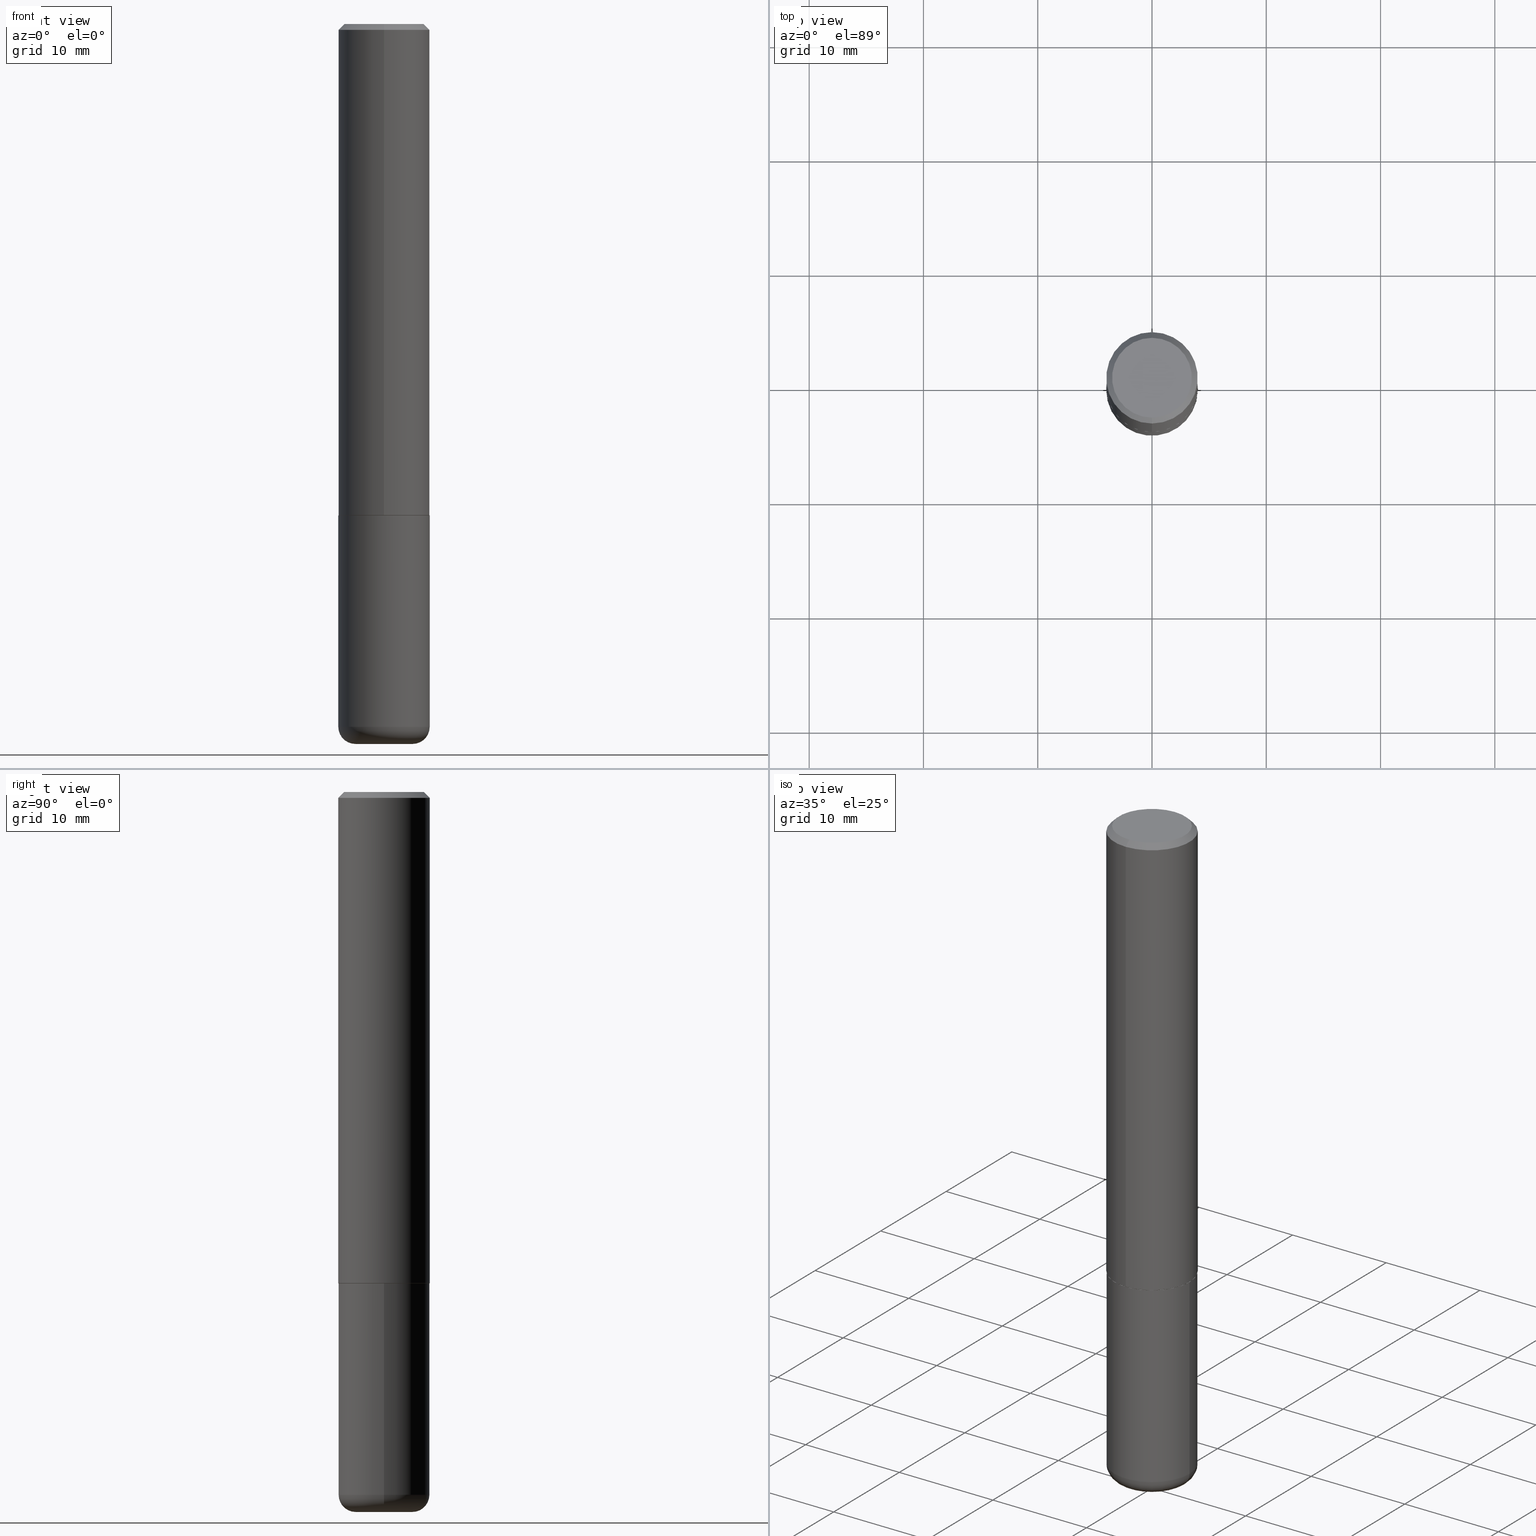
[diagram: canonical four-view strip — front | top / right | iso, engineering-drawing reading convention]
A machine part, canonical four-view strip (front | top / right | iso — engineering-drawing reading convention). The complete STEP part file that produces these views, byte-faithful:
ISO-10303-21;
HEADER;
FILE_DESCRIPTION (( 'STEP AP203' ),
    '1' );
FILE_NAME ('43477.STEP',
    '2024-03-04T05:01:27',
    ( '' ),
    ( '' ),
    'SwSTEP 2.0',
    'SolidWorks 2023',
    '' );
FILE_SCHEMA (( 'CONFIG_CONTROL_DESIGN' ));
ENDSEC;

DATA;
#1 = ORIENTED_EDGE ( 'NONE', *, *, #148, .T. ) ;
#2 = DIRECTION ( 'NONE',  ( 5.024295867787719235E-15, 0.7071067811865017205, 0.7071067811865933139 ) ) ;
#3 = AXIS2_PLACEMENT_3D ( 'NONE', #408, #248, #220 ) ;
#4 = ORIENTED_EDGE ( 'NONE', *, *, #71, .F. ) ;
#5 = CARTESIAN_POINT ( 'NONE',  ( 6.065496279980994755E-29, -8.659921164732655335E-15, -2.480300000000000171 ) ) ;
#6 = CYLINDRICAL_SURFACE ( 'NONE', #265, 0.1575000000000000844 ) ;
#7 = EDGE_LOOP ( 'NONE', ( #115, #165, #49, #374 ) ) ;
#8 = DIRECTION ( 'NONE',  ( -2.446155244437774389E-29, 3.490498320195729137E-15, 1.000000000000000000 ) ) ;
#9 = DIRECTION ( 'NONE',  ( -2.446155244437774389E-29, 3.490498320195729137E-15, 1.000000000000000000 ) ) ;
#10 = ADVANCED_FACE ( 'NONE', ( #18 ), #221, .F. ) ;
#11 = EDGE_LOOP ( 'NONE', ( #109, #85, #47, #243 ) ) ;
#12 = CYLINDRICAL_SURFACE ( 'NONE', #41, 0.1575000000000000011 ) ;
#13 = AXIS2_PLACEMENT_3D ( 'NONE', #369, #396, #296 ) ;
#14 = DIMENSIONAL_EXPONENTS ( 1.000000000000000000, 0.000000000000000000, 0.000000000000000000, 0.000000000000000000, 0.000000000000000000, 0.000000000000000000, 0.000000000000000000 ) ;
#15 = FACE_OUTER_BOUND ( 'NONE', #104, .T. ) ;
#16 = COORDINATED_UNIVERSAL_TIME_OFFSET ( 5, 0, .BEHIND. ) ;
#17 = DIRECTION ( 'NONE',  ( -2.445468806185136597E-29, 3.491481338843145583E-15, 1.000000000000000000 ) ) ;
#18 = FACE_OUTER_BOUND ( 'NONE', #150, .T. ) ;
#19 = PLANE ( 'NONE',  #320 ) ;
#20 = MANIFOLD_SOLID_BREP ( 'Body-Move/Copy2[1]', #409 ) ;
#21 = DIRECTION ( 'NONE',  ( -2.445468806185136597E-29, 3.491481338843145583E-15, 1.000000000000000000 ) ) ;
#22 = AXIS2_PLACEMENT_3D ( 'NONE', #91, #411, #129 ) ;
#23 = CC_DESIGN_SECURITY_CLASSIFICATION ( #209, ( #343 ) ) ;
#24 = DIRECTION ( 'NONE',  ( -2.446155244437774389E-29, 3.490498320195729137E-15, 1.000000000000000000 ) ) ;
#25 = CARTESIAN_POINT ( 'NONE',  ( 4.892310488875556766E-31, -6.980996640391468874E-17, -0.02000000000000003511 ) ) ;
#26 = DIRECTION ( 'NONE',  ( 2.438088387897960049E-29, -3.491481338843145188E-15, -1.000000000000000000 ) ) ;
#27 = EDGE_CURVE ( 'NONE', #239, #74, #159, .T. ) ;
#28 = PERSON_AND_ORGANIZATION ( #97, #54 ) ;
#29 = CIRCLE ( 'NONE', #233, 0.09840000000000000135 ) ;
#30 = CIRCLE ( 'NONE', #42, 0.1565000000000000002 ) ;
#31 = DATE_AND_TIME ( #417, #331 ) ;
#32 = CARTESIAN_POINT ( 'NONE',  ( 4.892310488875556766E-31, -6.980996640391468874E-17, -0.02000000000000003511 ) ) ;
#33 = APPROVAL_DATE_TIME ( #385, #132 ) ;
#34 = DESIGN_CONTEXT ( 'detailed design', #66, 'design' ) ;
#35 = EDGE_CURVE ( 'NONE', #43, #208, #29, .T. ) ;
#36 = ORIENTED_EDGE ( 'NONE', *, *, #376, .T. ) ;
#37 = CARTESIAN_POINT ( 'NONE',  ( 6.065496279980994755E-29, -8.659921164732655335E-15, -2.480300000000000171 ) ) ;
#38 = DIRECTION ( 'NONE',  ( -2.446155244437774389E-29, 3.490498320195729137E-15, 1.000000000000000000 ) ) ;
#39 = ORIENTED_EDGE ( 'NONE', *, *, #386, .T. ) ;
#40 = DIRECTION ( 'NONE',  ( 1.000000000000000000, -6.982962677686265922E-15, 4.876176775795935232E-29 ) ) ;
#41 = AXIS2_PLACEMENT_3D ( 'NONE', #367, #313, #40 ) ;
#42 = AXIS2_PLACEMENT_3D ( 'NONE', #195, #24, #193 ) ;
#43 = VERTEX_POINT ( 'NONE', #157 ) ;
#44 = DIRECTION ( 'NONE',  ( -6.982962677686265922E-15, -1.000000000000000000, 3.490498320195729137E-15 ) ) ;
#45 = CARTESIAN_POINT ( 'NONE',  ( -0.1574999999999999456, -7.334469808784867333E-15, -2.421200000000000241 ) ) ;
#46 = DATE_AND_TIME ( #335, #219 ) ;
#47 = ORIENTED_EDGE ( 'NONE', *, *, #79, .F. ) ;
#48 = CARTESIAN_POINT ( 'NONE',  ( 0.09840000000000000135, -9.347044692216982806E-15, -2.480300000000000171 ) ) ;
#49 = ORIENTED_EDGE ( 'NONE', *, *, #27, .T. ) ;
#50 = DIRECTION ( 'NONE',  ( -2.446155244437774389E-29, 3.490498320195729137E-15, 1.000000000000000000 ) ) ;
#51 = APPROVAL_DATE_TIME ( #46, #149 ) ;
#52 = AXIS2_PLACEMENT_3D ( 'NONE', #56, #162, #377 ) ;
#53 = DIRECTION ( 'NONE',  ( 2.446155244437773829E-29, -3.490498320195729531E-15, -1.000000000000000000 ) ) ;
#54 = ORGANIZATION ( 'UNSPECIFIED', 'UNSPECIFIED', '' ) ;
#55 = DIRECTION ( 'NONE',  ( -6.982962677686265922E-15, -1.000000000000000000, 3.490498320195729531E-15 ) ) ;
#56 = CARTESIAN_POINT ( 'NONE',  ( 4.139934141990818918E-29, -5.910728758527562653E-15, -1.692900000000000293 ) ) ;
#57 = EDGE_CURVE ( 'NONE', #201, #142, #125, .T. ) ;
#58 = LINE ( 'NONE', #191, #127 ) ;
#59 = CARTESIAN_POINT ( 'NONE',  ( 9.601573681818618699E-16, 0.1375000000000000389, -5.013536640094248788E-16 ) ) ;
#60 = CARTESIAN_POINT ( 'NONE',  ( 6.065496279980994755E-29, -8.659921164732655335E-15, -2.480300000000000171 ) ) ;
#61 = AXIS2_PLACEMENT_3D ( 'NONE', #278, #406, #345 ) ;
#62 = APPROVAL_PERSON_ORGANIZATION ( #323, #132, #103 ) ;
#63 = UNCERTAINTY_MEASURE_WITH_UNIT (LENGTH_MEASURE( 1.000000000000000082E-05 ), #128, 'distance_accuracy_value', 'NONE');
#64 = DIRECTION ( 'NONE',  ( -2.446155244437773829E-29, 3.490498320195729531E-15, 1.000000000000000000 ) ) ;
#65 = DIRECTION ( 'NONE',  ( -2.445468806185136597E-29, 3.491481338843145583E-15, 1.000000000000000000 ) ) ;
#66 = APPLICATION_CONTEXT ( 'configuration controlled 3d designs of mechanical parts and assemblies' ) ;
#67 = CC_DESIGN_PERSON_AND_ORGANIZATION_ASSIGNMENT ( #166, #387, ( #343 ) ) ;
#68 = CIRCLE ( 'NONE', #310, 0.1565000000000000002 ) ;
#69 = DATE_AND_TIME ( #383, #234 ) ;
#70 = PERSON_AND_ORGANIZATION ( #97, #54 ) ;
#71 = EDGE_CURVE ( 'NONE', #93, #184, #116, .T. ) ;
#72 = AXIS2_PLACEMENT_3D ( 'NONE', #98, #344, #252 ) ;
#73 = EDGE_CURVE ( 'NONE', #107, #239, #350, .T. ) ;
#74 = VERTEX_POINT ( 'NONE', #379 ) ;
#75 = CARTESIAN_POINT ( 'NONE',  ( 1.047450768662893258E-45, -1.494641501932098544E-31, -4.282028996502386919E-17 ) ) ;
#76 = CARTESIAN_POINT ( 'NONE',  ( 1.029986994958724379E-15, 0.1375000000000000389, -5.227638089919366809E-16 ) ) ;
#77 = ORIENTED_EDGE ( 'NONE', *, *, #79, .T. ) ;
#78 = EDGE_LOOP ( 'NONE', ( #277, #232 ) ) ;
#79 = EDGE_CURVE ( 'NONE', #74, #81, #225, .T. ) ;
#80 = FACE_OUTER_BOUND ( 'NONE', #11, .T. ) ;
#81 = VERTEX_POINT ( 'NONE', #216 ) ;
#82 = DIRECTION ( 'NONE',  ( 1.000000000000000000, -6.982962677686269866E-15, 4.883557194083114022E-29 ) ) ;
#83 = EDGE_LOOP ( 'NONE', ( #302, #264, #175, #203 ) ) ;
#84 = DIRECTION ( 'NONE',  ( -2.446155244437774389E-29, 3.490498320195729531E-15, 1.000000000000000000 ) ) ;
#85 = ORIENTED_EDGE ( 'NONE', *, *, #199, .T. ) ;
#86 = ADVANCED_FACE ( 'NONE', ( #281 ), #167, .T. ) ;
#87 = CONICAL_SURFACE ( 'NONE', #101, 0.1574999999999999456, 0.7853981633974466137 ) ;
#88 = DIRECTION ( 'NONE',  ( 6.982962677686265922E-15, 1.000000000000000000, -3.496114991891766760E-15 ) ) ;
#89 =( GEOMETRIC_REPRESENTATION_CONTEXT ( 3 ) GLOBAL_UNCERTAINTY_ASSIGNED_CONTEXT ( ( #63 ) ) GLOBAL_UNIT_ASSIGNED_CONTEXT ( ( #128, #158, #247 ) ) REPRESENTATION_CONTEXT ( 'NONE', 'WORKASPACE' ) );
#90 = PLANE ( 'NONE',  #324 ) ;
#91 = CARTESIAN_POINT ( 'NONE',  ( 4.139934141990818918E-29, -5.910728758527562653E-15, -1.692900000000000293 ) ) ;
#92 = APPROVAL ( #249, 'UNSPECIFIED' ) ;
#93 = VERTEX_POINT ( 'NONE', #192 ) ;
#94 = ADVANCED_FACE ( 'NONE', ( #381 ), #202, .T. ) ;
#95 = DIRECTION ( 'NONE',  ( 7.105427357601001859E-15, 1.000000000000000000, -3.491481338843145583E-15 ) ) ;
#96 = AXIS2_PLACEMENT_3D ( 'NONE', #126, #21, #284 ) ;
#97 = PERSON ( 'UNSPECIFIED', 'UNSPECIFIED', 'UNSPECIFIED', ('UNSPECIFIED'), ('UNSPECIFIED'), ('UNSPECIFIED') ) ;
#98 = CARTESIAN_POINT ( 'NONE',  ( 5.920969073535453422E-29, -8.453574617607024936E-15, -2.421200000000000241 ) ) ;
#99 = CC_DESIGN_PERSON_AND_ORGANIZATION_ASSIGNMENT ( #231, #288, ( #209 ) ) ;
#100 = AXIS2_PLACEMENT_3D ( 'NONE', #183, #207, #338 ) ;
#101 = AXIS2_PLACEMENT_3D ( 'NONE', #327, #174, #371 ) ;
#102 = CC_DESIGN_APPROVAL ( #92, ( #352 ) ) ;
#103 = APPROVAL_ROLE ( '' ) ;
#104 = EDGE_LOOP ( 'NONE', ( #306, #272, #273, #365 ) ) ;
#105 = SECURITY_CLASSIFICATION_LEVEL ( 'unclassified' ) ;
#106 = EDGE_CURVE ( 'NONE', #81, #74, #390, .T. ) ;
#107 = VERTEX_POINT ( 'NONE', #45 ) ;
#108 = TOROIDAL_SURFACE ( 'NONE', #353, 0.09840000000000000135, 0.05909999999999995812 ) ;
#109 = ORIENTED_EDGE ( 'NONE', *, *, #356, .T. ) ;
#110 = PLANE ( 'NONE',  #168 ) ;
#111 = FACE_OUTER_BOUND ( 'NONE', #7, .T. ) ;
#112 = CC_DESIGN_PERSON_AND_ORGANIZATION_ASSIGNMENT ( #28, #362, ( #352 ) ) ;
#113 = ORIENTED_EDGE ( 'NONE', *, *, #253, .T. ) ;
#114 = CARTESIAN_POINT ( 'NONE',  ( -1.011923454671300448E-15, -0.1375000000000000389, 4.371232290618889795E-16 ) ) ;
#115 = ORIENTED_EDGE ( 'NONE', *, *, #199, .F. ) ;
#116 = CIRCLE ( 'NONE', #401, 0.1574999999999999456 ) ;
#117 = VERTEX_POINT ( 'NONE', #394 ) ;
#118 = CC_DESIGN_PERSON_AND_ORGANIZATION_ASSIGNMENT ( #70, #388, ( #343 ) ) ;
#119 = CARTESIAN_POINT ( 'NONE',  ( 0.000000000000000000, 0.000000000000000000, 0.000000000000000000 ) ) ;
#120 = EDGE_LOOP ( 'NONE', ( #145, #39, #170, #295 ) ) ;
#121 = DIRECTION ( 'NONE',  ( -1.000000000000000000, 6.982962677686265922E-15, -4.876176775795935793E-29 ) ) ;
#122 = CARTESIAN_POINT ( 'NONE',  ( -1.080528434649015385E-15, -0.1575000000000000289, -0.01999999999999948347 ) ) ;
#123 = DIRECTION ( 'NONE',  ( -2.446155244437774389E-29, 3.490498320195729137E-15, 1.000000000000000000 ) ) ;
#124 = PERSON_AND_ORGANIZATION ( #97, #54 ) ;
#125 = CIRCLE ( 'NONE', #61, 0.1375000000000000389 ) ;
#126 = CARTESIAN_POINT ( 'NONE',  ( 5.920969073535453422E-29, -8.453574617607024936E-15, -2.421200000000000241 ) ) ;
#127 = VECTOR ( 'NONE', #226, 39.37007874015748854 ) ;
#128 =( CONVERSION_BASED_UNIT ( 'INCH', #285 ) LENGTH_UNIT ( ) NAMED_UNIT ( #14 ) );
#129 = DIRECTION ( 'NONE',  ( 1.000000000000000000, -6.982962677686268288E-15, 0.000000000000000000 ) ) ;
#130 = COORDINATED_UNIVERSAL_TIME_OFFSET ( 5, 0, .BEHIND. ) ;
#131 = VECTOR ( 'NONE', #198, 39.37007874015748854 ) ;
#132 = APPROVAL ( #261, 'UNSPECIFIED' ) ;
#133 = ORIENTED_EDGE ( 'NONE', *, *, #134, .F. ) ;
#134 = EDGE_CURVE ( 'NONE', #181, #117, #68, .T. ) ;
#135 = ADVANCED_FACE ( 'NONE', ( #111 ), #12, .T. ) ;
#136 = FACE_OUTER_BOUND ( 'NONE', #235, .T. ) ;
#137 = EDGE_LOOP ( 'NONE', ( #179, #290, #1, #254 ) ) ;
#138 = AXIS2_PLACEMENT_3D ( 'NONE', #32, #8, #270 ) ;
#139 = CC_DESIGN_DATE_AND_TIME_ASSIGNMENT ( #245, #373, ( #209 ) ) ;
#140 = APPROVAL_PERSON_ORGANIZATION ( #330, #149, #268 ) ;
#141 = APPROVAL_STATUS ( 'not_yet_approved' ) ;
#142 = VERTEX_POINT ( 'NONE', #76 ) ;
#143 = DIRECTION ( 'NONE',  ( 2.438088387897960049E-29, -3.491481338843145188E-15, -1.000000000000000000 ) ) ;
#144 = LINE ( 'NONE', #242, #176 ) ;
#145 = ORIENTED_EDGE ( 'NONE', *, *, #287, .T. ) ;
#146 = CARTESIAN_POINT ( 'NONE',  ( 5.920969073535453422E-29, -8.453574617607024936E-15, -2.421200000000000241 ) ) ;
#147 = DIRECTION ( 'NONE',  ( -2.445468806185136877E-29, 3.491481338843145188E-15, 1.000000000000000000 ) ) ;
#148 = EDGE_CURVE ( 'NONE', #181, #395, #405, .T. ) ;
#149 = APPROVAL ( #141, 'UNSPECIFIED' ) ;
#150 = EDGE_LOOP ( 'NONE', ( #206, #309 ) ) ;
#151 = AXIS2_PLACEMENT_3D ( 'NONE', #59, #53, #382 ) ;
#152 = VECTOR ( 'NONE', #241, 39.37007874015748143 ) ;
#153 = EDGE_LOOP ( 'NONE', ( #171, #36, #113, #262 ) ) ;
#154 = EDGE_CURVE ( 'NONE', #395, #400, #359, .T. ) ;
#155 = CARTESIAN_POINT ( 'NONE',  ( -1.080528434649015385E-15, -0.1575000000000000289, -0.01999999999999948347 ) ) ;
#156 = DIRECTION ( 'NONE',  ( 1.000000000000000000, -6.982962677686266711E-15, 0.000000000000000000 ) ) ;
#157 = CARTESIAN_POINT ( 'NONE',  ( -0.09840000000000000135, -7.647608460764791890E-15, -2.480300000000000171 ) ) ;
#158 =( NAMED_UNIT ( * ) PLANE_ANGLE_UNIT ( ) SI_UNIT ( $, .RADIAN. ) );
#159 = LINE ( 'NONE', #403, #342 ) ;
#160 = CONICAL_SURFACE ( 'NONE', #186, 0.1565000000000000002, 0.7853981633973801113 ) ;
#161 = CC_DESIGN_APPROVAL ( #132, ( #343 ) ) ;
#162 = DIRECTION ( 'NONE',  ( -2.445468806185136597E-29, 3.491481338843145583E-15, 1.000000000000000000 ) ) ;
#163 = CARTESIAN_POINT ( 'NONE',  ( -1.099816621735546657E-15, -0.1575000000000061073, -1.691899999999999515 ) ) ;
#164 = CC_DESIGN_PERSON_AND_ORGANIZATION_ASSIGNMENT ( #124, #286, ( #318 ) ) ;
#165 = ORIENTED_EDGE ( 'NONE', *, *, #73, .T. ) ;
#166 = PERSON_AND_ORGANIZATION ( #97, #54 ) ;
#167 = CONICAL_SURFACE ( 'NONE', #274, 0.1574999999999999456, 0.7853981633974466137 ) ;
#168 = AXIS2_PLACEMENT_3D ( 'NONE', #5, #143, #121 ) ;
#169 = MANIFOLD_SOLID_BREP ( 'Body-Move/Copy2[2]', #250 ) ;
#170 = ORIENTED_EDGE ( 'NONE', *, *, #356, .F. ) ;
#171 = ORIENTED_EDGE ( 'NONE', *, *, #57, .F. ) ;
#172 = CC_DESIGN_DATE_AND_TIME_ASSIGNMENT ( #31, #291, ( #352 ) ) ;
#173 = LINE ( 'NONE', #182, #299 ) ;
#174 = DIRECTION ( 'NONE',  ( 2.446155244437774389E-29, -3.490498320195729137E-15, -1.000000000000000000 ) ) ;
#175 = ORIENTED_EDGE ( 'NONE', *, *, #404, .T. ) ;
#176 = VECTOR ( 'NONE', #147, 39.37007874015748143 ) ;
#177 = DIRECTION ( 'NONE',  ( -2.445468806185136597E-29, 3.491481338843145583E-15, 1.000000000000000000 ) ) ;
#178 = CARTESIAN_POINT ( 'NONE',  ( -1.092833659057859065E-15, -0.1565000000000058844, -1.692899999999999849 ) ) ;
#179 = ORIENTED_EDGE ( 'NONE', *, *, #325, .F. ) ;
#180 = FACE_OUTER_BOUND ( 'NONE', #213, .T. ) ;
#181 = VERTEX_POINT ( 'NONE', #301 ) ;
#182 = CARTESIAN_POINT ( 'NONE',  ( 1.111999381464598010E-15, 0.1564999999999940883, -1.692900000000000960 ) ) ;
#183 = CARTESIAN_POINT ( 'NONE',  ( 4.138650058064270947E-29, -5.905574107939154808E-15, -1.691899999999999959 ) ) ;
#184 = VERTEX_POINT ( 'NONE', #122 ) ;
#185 = DIRECTION ( 'NONE',  ( -6.982962677686265922E-15, -1.000000000000000000, 3.491179544618866730E-15 ) ) ;
#186 = AXIS2_PLACEMENT_3D ( 'NONE', #334, #9, #187 ) ;
#187 = DIRECTION ( 'NONE',  ( -6.982962677686265922E-15, -1.000000000000000000, 3.491179544618866730E-15 ) ) ;
#188 = CIRCLE ( 'NONE', #13, 0.1575000000000001954 ) ;
#189 = SHAPE_DEFINITION_REPRESENTATION ( #259, #218 ) ;
#190 = ADVANCED_FACE ( 'NONE', ( #180 ), #6, .T. ) ;
#191 = CARTESIAN_POINT ( 'NONE',  ( 1.099816621735586889E-15, 0.1574999999999998901, -0.02000000000000058328 ) ) ;
#192 = CARTESIAN_POINT ( 'NONE',  ( 1.099816621735586889E-15, 0.1574999999999998901, -0.02000000000000058328 ) ) ;
#193 = DIRECTION ( 'NONE',  ( -6.982962677686265922E-15, -1.000000000000000000, 3.491179544618866730E-15 ) ) ;
#194 = DIRECTION ( 'NONE',  ( 2.446155244437774389E-29, -3.490498320195729137E-15, -1.000000000000000000 ) ) ;
#195 = CARTESIAN_POINT ( 'NONE',  ( 4.141096213308709565E-29, -5.909064606259350740E-15, -1.692900000000000293 ) ) ;
#196 = ADVANCED_FACE ( 'NONE', ( #15 ), #160, .T. ) ;
#197 = DIRECTION ( 'NONE',  ( -6.982962677686265922E-15, -1.000000000000000000, 3.496114991891766760E-15 ) ) ;
#198 = DIRECTION ( 'NONE',  ( -4.851104656540954809E-15, -0.7071067811865486830, -0.7071067811865462405 ) ) ;
#199 = EDGE_CURVE ( 'NONE', #107, #81, #144, .T. ) ;
#200 = ORIENTED_EDGE ( 'NONE', *, *, #154, .T. ) ;
#201 = VERTEX_POINT ( 'NONE', #114 ) ;
#202 = TOROIDAL_SURFACE ( 'NONE', #96, 0.09840000000000000135, 0.05909999999999995812 ) ;
#203 = ORIENTED_EDGE ( 'NONE', *, *, #71, .T. ) ;
#204 = CARTESIAN_POINT ( 'NONE',  ( 0.000000000000000000, 0.000000000000000000, 0.000000000000000000 ) ) ;
#205 = EDGE_CURVE ( 'NONE', #208, #239, #282, .T. ) ;
#206 = ORIENTED_EDGE ( 'NONE', *, *, #271, .T. ) ;
#207 = DIRECTION ( 'NONE',  ( -2.446155244437774389E-29, 3.490498320195729137E-15, 1.000000000000000000 ) ) ;
#208 = VERTEX_POINT ( 'NONE', #48 ) ;
#209 = SECURITY_CLASSIFICATION ( '', '', #105 ) ;
#210 = DIRECTION ( 'NONE',  ( -2.445468806185136597E-29, 3.491481338843145583E-15, 1.000000000000000000 ) ) ;
#211 = DIRECTION ( 'NONE',  ( -4.937700262164211199E-15, -0.7071067811864968355, 0.7071067811865981989 ) ) ;
#212 = ORIENTED_EDGE ( 'NONE', *, *, #35, .T. ) ;
#213 = EDGE_LOOP ( 'NONE', ( #200, #269, #347, #236 ) ) ;
#214 = LINE ( 'NONE', #339, #152 ) ;
#215 = CARTESIAN_POINT ( 'NONE',  ( 4.141096213308709565E-29, -5.909064606259350740E-15, -1.692900000000000293 ) ) ;
#216 = CARTESIAN_POINT ( 'NONE',  ( -0.1575000000000000011, -6.063046879245136191E-15, -1.692900000000000293 ) ) ;
#217 = DIRECTION ( 'NONE',  ( -1.000000000000000000, 6.982962677686265922E-15, -4.876176775795935793E-29 ) ) ;
#218 = ADVANCED_BREP_SHAPE_REPRESENTATION ( '43477', ( #20, #169, #332 ), #89 ) ;
#219 = LOCAL_TIME ( 0, 1, 27.00000000000000000, #16 ) ;
#220 = DIRECTION ( 'NONE',  ( 1.000000000000000000, -6.982962677686268288E-15, 0.000000000000000000 ) ) ;
#221 = PLANE ( 'NONE',  #151 ) ;
#222 = CARTESIAN_POINT ( 'NONE',  ( -0.09840000000000000135, -7.754400565619087626E-15, -2.421200000000000241 ) ) ;
#223 = CARTESIAN_POINT ( 'NONE',  ( 4.892310488875556766E-31, -6.980996640391468874E-17, -0.02000000000000003511 ) ) ;
#224 = DIRECTION ( 'NONE',  ( 1.000000000000000000, 0.000000000000000000, 0.000000000000000000 ) ) ;
#225 = CIRCLE ( 'NONE', #52, 0.1575000000000000011 ) ;
#226 = DIRECTION ( 'NONE',  ( 4.937700262164538576E-15, 0.7071067811865437980, -0.7071067811865511255 ) ) ;
#227 = ADVANCED_FACE ( 'NONE', ( #308 ), #87, .T. ) ;
#228 = COORDINATED_UNIVERSAL_TIME_OFFSET ( 5, 0, .BEHIND. ) ;
#229 = AXIS2_PLACEMENT_3D ( 'NONE', #37, #210, #375 ) ;
#230 = ADVANCED_FACE ( 'NONE', ( #80 ), #276, .T. ) ;
#231 = PERSON_AND_ORGANIZATION ( #97, #54 ) ;
#232 = ORIENTED_EDGE ( 'NONE', *, *, #35, .F. ) ;
#233 = AXIS2_PLACEMENT_3D ( 'NONE', #60, #17, #341 ) ;
#234 = LOCAL_TIME ( 0, 1, 27.00000000000000000, #130 ) ;
#235 = EDGE_LOOP ( 'NONE', ( #392, #370, #246, #4 ) ) ;
#236 = ORIENTED_EDGE ( 'NONE', *, *, #293, .F. ) ;
#237 = DIRECTION ( 'NONE',  ( -6.982962677686265922E-15, -1.000000000000000000, 3.490498320195728742E-15 ) ) ;
#238 = CALENDAR_DATE ( 2024, 4, 3 ) ;
#239 = VERTEX_POINT ( 'NONE', #321 ) ;
#240 = AXIS2_PLACEMENT_3D ( 'NONE', #303, #50, #185 ) ;
#241 = DIRECTION ( 'NONE',  ( -2.446155244437774389E-29, 3.490498320195729531E-15, 1.000000000000000000 ) ) ;
#242 = CARTESIAN_POINT ( 'NONE',  ( -0.1575000000000000011, 1.119104808822157801E-15, -7.747322767151475583E-30 ) ) ;
#243 = ORIENTED_EDGE ( 'NONE', *, *, #27, .F. ) ;
#244 = DIRECTION ( 'NONE',  ( -2.446155244437774389E-29, 3.490498320195729137E-15, 1.000000000000000000 ) ) ;
#245 = DATE_AND_TIME ( #238, #289 ) ;
#246 = ORIENTED_EDGE ( 'NONE', *, *, #293, .T. ) ;
#247 =( NAMED_UNIT ( * ) SI_UNIT ( $, .STERADIAN. ) SOLID_ANGLE_UNIT ( ) );
#248 = DIRECTION ( 'NONE',  ( -2.445468806185136597E-29, 3.491481338843145583E-15, 1.000000000000000000 ) ) ;
#249 = APPROVAL_STATUS ( 'not_yet_approved' ) ;
#250 = CLOSED_SHELL ( 'NONE', ( #196, #190, #86, #227, #258, #322, #398, #10 ) ) ;
#251 = DIRECTION ( 'NONE',  ( -2.445468806185136877E-29, 3.491481338843145188E-15, 1.000000000000000000 ) ) ;
#252 = DIRECTION ( 'NONE',  ( 1.000000000000000000, -6.982962677686268288E-15, 0.000000000000000000 ) ) ;
#253 = EDGE_CURVE ( 'NONE', #184, #93, #363, .T. ) ;
#254 = ORIENTED_EDGE ( 'NONE', *, *, #304, .F. ) ;
#255 = CARTESIAN_POINT ( 'NONE',  ( 4.139934141990818918E-29, -5.910728758527562653E-15, -1.692900000000000293 ) ) ;
#256 = DIRECTION ( 'NONE',  ( -1.000000000000000000, 7.105427357600997914E-15, 0.000000000000000000 ) ) ;
#257 = CONICAL_SURFACE ( 'NONE', #240, 0.1565000000000000002, 0.7853981633973801113 ) ;
#258 = ADVANCED_FACE ( 'NONE', ( #136 ), #366, .T. ) ;
#259 = PRODUCT_DEFINITION_SHAPE ( 'NONE', 'NONE',  #352 ) ;
#260 = AXIS2_PLACEMENT_3D ( 'NONE', #305, #297, #156 ) ;
#261 = APPROVAL_STATUS ( 'not_yet_approved' ) ;
#262 = ORIENTED_EDGE ( 'NONE', *, *, #404, .F. ) ;
#263 = EDGE_CURVE ( 'NONE', #400, #93, #214, .T. ) ;
#264 = ORIENTED_EDGE ( 'NONE', *, *, #271, .F. ) ;
#265 = AXIS2_PLACEMENT_3D ( 'NONE', #204, #38, #237 ) ;
#266 = VECTOR ( 'NONE', #84, 39.37007874015748143 ) ;
#267 = DIRECTION ( 'NONE',  ( -2.446155244437774389E-29, 3.490498320195729137E-15, 1.000000000000000000 ) ) ;
#268 = APPROVAL_ROLE ( '' ) ;
#269 = ORIENTED_EDGE ( 'NONE', *, *, #263, .T. ) ;
#270 = DIRECTION ( 'NONE',  ( -6.982962677686265922E-15, -1.000000000000000000, 3.496114991891766760E-15 ) ) ;
#271 = EDGE_CURVE ( 'NONE', #142, #201, #275, .T. ) ;
#272 = ORIENTED_EDGE ( 'NONE', *, *, #325, .T. ) ;
#273 = ORIENTED_EDGE ( 'NONE', *, *, #154, .F. ) ;
#274 = AXIS2_PLACEMENT_3D ( 'NONE', #25, #194, #88 ) ;
#275 = CIRCLE ( 'NONE', #364, 0.1375000000000000389 ) ;
#276 = CYLINDRICAL_SURFACE ( 'NONE', #319, 0.1575000000000000011 ) ;
#277 = ORIENTED_EDGE ( 'NONE', *, *, #287, .F. ) ;
#278 = CARTESIAN_POINT ( 'NONE',  ( 1.047450768662893258E-45, -1.494641501932098544E-31, -4.282028996502386919E-17 ) ) ;
#279 = CARTESIAN_POINT ( 'NONE',  ( 0.000000000000000000, 0.000000000000000000, 0.000000000000000000 ) ) ;
#280 = ADVANCED_FACE ( 'NONE', ( #372 ), #108, .T. ) ;
#281 = FACE_OUTER_BOUND ( 'NONE', #153, .T. ) ;
#282 = CIRCLE ( 'NONE', #260, 0.05909999999999995812 ) ;
#283 = APPROVAL_PERSON_ORGANIZATION ( #378, #92, #380 ) ;
#284 = DIRECTION ( 'NONE',  ( 1.000000000000000000, -6.982962677686269866E-15, 4.883557194083114022E-29 ) ) ;
#285 = LENGTH_MEASURE_WITH_UNIT ( LENGTH_MEASURE( 0.02539999999999999897 ), #410 );
#286 = PERSON_AND_ORGANIZATION_ROLE ( 'design_owner' ) ;
#287 = EDGE_CURVE ( 'NONE', #208, #43, #418, .T. ) ;
#288 = PERSON_AND_ORGANIZATION_ROLE ( 'classification_officer' ) ;
#289 = LOCAL_TIME ( 0, 1, 27.00000000000000000, #415 ) ;
#290 = ORIENTED_EDGE ( 'NONE', *, *, #414, .T. ) ;
#291 = DATE_TIME_ROLE ( 'creation_date' ) ;
#292 = CC_DESIGN_APPROVAL ( #149, ( #209 ) ) ;
#293 = EDGE_CURVE ( 'NONE', #395, #184, #337, .T. ) ;
#294 = ORIENTED_EDGE ( 'NONE', *, *, #205, .T. ) ;
#295 = ORIENTED_EDGE ( 'NONE', *, *, #205, .F. ) ;
#296 = DIRECTION ( 'NONE',  ( -6.982962677686265922E-15, -1.000000000000000000, 3.469013325287948955E-15 ) ) ;
#297 = DIRECTION ( 'NONE',  ( -6.982962677686266711E-15, -1.000000000000000000, 3.491481338843145583E-15 ) ) ;
#298 = VECTOR ( 'NONE', #211, 39.37007874015748143 ) ;
#299 = VECTOR ( 'NONE', #2, 39.37007874015748143 ) ;
#300 = CARTESIAN_POINT ( 'NONE',  ( -1.099816621735587480E-15, -0.1575000000000000844, 5.497534854308275806E-16 ) ) ;
#301 = CARTESIAN_POINT ( 'NONE',  ( -1.092833659057859065E-15, -0.1565000000000058844, -1.692899999999999849 ) ) ;
#302 = ORIENTED_EDGE ( 'NONE', *, *, #376, .F. ) ;
#303 = CARTESIAN_POINT ( 'NONE',  ( 4.141096213308709565E-29, -5.909064606259350740E-15, -1.692900000000000293 ) ) ;
#304 = EDGE_CURVE ( 'NONE', #400, #395, #188, .T. ) ;
#305 = CARTESIAN_POINT ( 'NONE',  ( 0.09840000000000000135, -9.140698145091353984E-15, -2.421200000000000241 ) ) ;
#306 = ORIENTED_EDGE ( 'NONE', *, *, #134, .T. ) ;
#307 = CARTESIAN_POINT ( 'NONE',  ( 0.000000000000000000, 0.000000000000000000, 0.000000000000000000 ) ) ;
#308 = FACE_OUTER_BOUND ( 'NONE', #83, .T. ) ;
#309 = ORIENTED_EDGE ( 'NONE', *, *, #57, .T. ) ;
#310 = AXIS2_PLACEMENT_3D ( 'NONE', #215, #267, #397 ) ;
#311 = AXIS2_PLACEMENT_3D ( 'NONE', #307, #244, #389 ) ;
#312 = FACE_OUTER_BOUND ( 'NONE', #314, .T. ) ;
#313 = DIRECTION ( 'NONE',  ( -2.445468806185136597E-29, 3.491481338843145583E-15, 1.000000000000000000 ) ) ;
#314 = EDGE_LOOP ( 'NONE', ( #133, #316 ) ) ;
#315 = LINE ( 'NONE', #155, #131 ) ;
#316 = ORIENTED_EDGE ( 'NONE', *, *, #414, .F. ) ;
#317 = APPLICATION_CONTEXT ( 'configuration controlled 3d designs of mechanical parts and assemblies' ) ;
#318 = PRODUCT ( '43477', '43477', '', ( #351 ) ) ;
#319 = AXIS2_PLACEMENT_3D ( 'NONE', #119, #65, #358 ) ;
#320 = AXIS2_PLACEMENT_3D ( 'NONE', #255, #26, #217 ) ;
#321 = CARTESIAN_POINT ( 'NONE',  ( 0.1574999999999999456, -9.553391239342613205E-15, -2.421200000000000241 ) ) ;
#322 = ADVANCED_FACE ( 'NONE', ( #333 ), #257, .T. ) ;
#323 = PERSON_AND_ORGANIZATION ( #97, #54 ) ;
#324 = AXIS2_PLACEMENT_3D ( 'NONE', #412, #64, #55 ) ;
#325 = EDGE_CURVE ( 'NONE', #117, #400, #173, .T. ) ;
#326 = ORIENTED_EDGE ( 'NONE', *, *, #73, .F. ) ;
#327 = CARTESIAN_POINT ( 'NONE',  ( 4.892310488875556766E-31, -6.980996640391468874E-17, -0.02000000000000003511 ) ) ;
#328 = EDGE_LOOP ( 'NONE', ( #77, #402 ) ) ;
#329 = DIRECTION ( 'NONE',  ( -2.446155244437774389E-29, 3.490498320195729137E-15, 1.000000000000000000 ) ) ;
#330 = PERSON_AND_ORGANIZATION ( #97, #54 ) ;
#331 = LOCAL_TIME ( 0, 1, 27.00000000000000000, #361 ) ;
#332 = AXIS2_PLACEMENT_3D ( 'NONE', #279, #349, #224 ) ;
#333 = FACE_OUTER_BOUND ( 'NONE', #137, .T. ) ;
#334 = CARTESIAN_POINT ( 'NONE',  ( 4.141096213308709565E-29, -5.909064606259350740E-15, -1.692900000000000293 ) ) ;
#335 = CALENDAR_DATE ( 2024, 4, 3 ) ;
#336 = EDGE_LOOP ( 'NONE', ( #368, #212, #294, #326 ) ) ;
#337 = LINE ( 'NONE', #300, #266 ) ;
#338 = DIRECTION ( 'NONE',  ( -6.982962677686265922E-15, -1.000000000000000000, 3.469013325287948955E-15 ) ) ;
#339 = CARTESIAN_POINT ( 'NONE',  ( 1.119104808822158195E-15, 0.1575000000000000844, -5.497534854308275806E-16 ) ) ;
#340 = ADVANCED_FACE ( 'NONE', ( #393 ), #110, .T. ) ;
#341 = DIRECTION ( 'NONE',  ( 1.000000000000000000, -6.982962677686261977E-15, 0.000000000000000000 ) ) ;
#342 = VECTOR ( 'NONE', #251, 39.37007874015748143 ) ;
#343 = PRODUCT_DEFINITION_FORMATION_WITH_SPECIFIED_SOURCE ( 'ANY', '', #318, .NOT_KNOWN. ) ;
#344 = DIRECTION ( 'NONE',  ( -2.445468806185136597E-29, 3.491481338843145583E-15, 1.000000000000000000 ) ) ;
#345 = DIRECTION ( 'NONE',  ( -6.982962677686265922E-15, -1.000000000000000000, 3.490498320195729137E-15 ) ) ;
#346 = CARTESIAN_POINT ( 'NONE',  ( 1.119104808822179889E-15, 0.1574999999999942835, -1.691900000000000626 ) ) ;
#347 = ORIENTED_EDGE ( 'NONE', *, *, #253, .F. ) ;
#348 = ADVANCED_FACE ( 'NONE', ( #354 ), #19, .F. ) ;
#349 = DIRECTION ( 'NONE',  ( 0.000000000000000000, 0.000000000000000000, 1.000000000000000000 ) ) ;
#350 = CIRCLE ( 'NONE', #3, 0.1575000000000000011 ) ;
#351 = MECHANICAL_CONTEXT ( 'NONE', #317, 'mechanical' ) ;
#352 = PRODUCT_DEFINITION ( 'UNKNOWN', '', #343, #34 ) ;
#353 = AXIS2_PLACEMENT_3D ( 'NONE', #146, #177, #82 ) ;
#354 = FACE_OUTER_BOUND ( 'NONE', #328, .T. ) ;
#355 = CALENDAR_DATE ( 2024, 4, 3 ) ;
#356 = EDGE_CURVE ( 'NONE', #239, #107, #360, .T. ) ;
#357 = APPROVAL_DATE_TIME ( #69, #92 ) ;
#358 = DIRECTION ( 'NONE',  ( 1.000000000000000000, -6.982962677686265922E-15, 4.876176775795935232E-29 ) ) ;
#359 = CIRCLE ( 'NONE', #100, 0.1575000000000001954 ) ;
#360 = CIRCLE ( 'NONE', #72, 0.1575000000000000011 ) ;
#361 = COORDINATED_UNIVERSAL_TIME_OFFSET ( 5, 0, .BEHIND. ) ;
#362 = PERSON_AND_ORGANIZATION_ROLE ( 'creator' ) ;
#363 = CIRCLE ( 'NONE', #138, 0.1574999999999999456 ) ;
#364 = AXIS2_PLACEMENT_3D ( 'NONE', #75, #329, #44 ) ;
#365 = ORIENTED_EDGE ( 'NONE', *, *, #148, .F. ) ;
#366 = CYLINDRICAL_SURFACE ( 'NONE', #311, 0.1575000000000000844 ) ;
#367 = CARTESIAN_POINT ( 'NONE',  ( 0.000000000000000000, 0.000000000000000000, 0.000000000000000000 ) ) ;
#368 = ORIENTED_EDGE ( 'NONE', *, *, #386, .F. ) ;
#369 = CARTESIAN_POINT ( 'NONE',  ( 4.138650058064270947E-29, -5.905574107939154808E-15, -1.691899999999999959 ) ) ;
#370 = ORIENTED_EDGE ( 'NONE', *, *, #304, .T. ) ;
#371 = DIRECTION ( 'NONE',  ( 6.982962677686265922E-15, 1.000000000000000000, -3.496114991891766760E-15 ) ) ;
#372 = FACE_OUTER_BOUND ( 'NONE', #336, .T. ) ;
#373 = DATE_TIME_ROLE ( 'classification_date' ) ;
#374 = ORIENTED_EDGE ( 'NONE', *, *, #106, .F. ) ;
#375 = DIRECTION ( 'NONE',  ( 1.000000000000000000, -6.982962677686261977E-15, 0.000000000000000000 ) ) ;
#376 = EDGE_CURVE ( 'NONE', #201, #184, #315, .T. ) ;
#377 = DIRECTION ( 'NONE',  ( 1.000000000000000000, -6.982962677686268288E-15, 0.000000000000000000 ) ) ;
#378 = PERSON_AND_ORGANIZATION ( #97, #54 ) ;
#379 = CARTESIAN_POINT ( 'NONE',  ( 0.1575000000000000011, -7.010545380263150133E-15, -1.692900000000000293 ) ) ;
#380 = APPROVAL_ROLE ( '' ) ;
#381 = FACE_OUTER_BOUND ( 'NONE', #120, .T. ) ;
#382 = DIRECTION ( 'NONE',  ( 6.982962677686265922E-15, 1.000000000000000000, -3.490498320195729531E-15 ) ) ;
#383 = CALENDAR_DATE ( 2024, 4, 3 ) ;
#384 = LOCAL_TIME ( 0, 1, 27.00000000000000000, #228 ) ;
#385 = DATE_AND_TIME ( #355, #384 ) ;
#386 = EDGE_CURVE ( 'NONE', #43, #107, #391, .T. ) ;
#387 = PERSON_AND_ORGANIZATION_ROLE ( 'creator' ) ;
#388 = PERSON_AND_ORGANIZATION_ROLE ( 'design_supplier' ) ;
#389 = DIRECTION ( 'NONE',  ( -6.982962677686265922E-15, -1.000000000000000000, 3.490498320195728742E-15 ) ) ;
#390 = CIRCLE ( 'NONE', #22, 0.1575000000000000011 ) ;
#391 = CIRCLE ( 'NONE', #416, 0.05909999999999995812 ) ;
#392 = ORIENTED_EDGE ( 'NONE', *, *, #263, .F. ) ;
#393 = FACE_OUTER_BOUND ( 'NONE', #78, .T. ) ;
#394 = CARTESIAN_POINT ( 'NONE',  ( 1.115552095143399303E-15, 0.1564999999999940883, -1.692900000000000960 ) ) ;
#395 = VERTEX_POINT ( 'NONE', #163 ) ;
#396 = DIRECTION ( 'NONE',  ( -2.446155244437774389E-29, 3.490498320195729137E-15, 1.000000000000000000 ) ) ;
#397 = DIRECTION ( 'NONE',  ( -6.982962677686265922E-15, -1.000000000000000000, 3.491179544618866730E-15 ) ) ;
#398 = ADVANCED_FACE ( 'NONE', ( #312 ), #90, .F. ) ;
#399 = PRODUCT_RELATED_PRODUCT_CATEGORY ( 'detail', '', ( #318 ) ) ;
#400 = VERTEX_POINT ( 'NONE', #346 ) ;
#401 = AXIS2_PLACEMENT_3D ( 'NONE', #223, #123, #197 ) ;
#402 = ORIENTED_EDGE ( 'NONE', *, *, #106, .T. ) ;
#403 = CARTESIAN_POINT ( 'NONE',  ( 0.1575000000000000011, -1.099816621735586889E-15, 7.679978421878598033E-30 ) ) ;
#404 = EDGE_CURVE ( 'NONE', #142, #93, #58, .T. ) ;
#405 = LINE ( 'NONE', #178, #298 ) ;
#406 = DIRECTION ( 'NONE',  ( -2.446155244437774389E-29, 3.490498320195729137E-15, 1.000000000000000000 ) ) ;
#407 = APPLICATION_PROTOCOL_DEFINITION ( 'international standard', 'config_control_design', 1994, #317 ) ;
#408 = CARTESIAN_POINT ( 'NONE',  ( 5.920969073535453422E-29, -8.453574617607024936E-15, -2.421200000000000241 ) ) ;
#409 = CLOSED_SHELL ( 'NONE', ( #230, #94, #348, #135, #280, #340 ) ) ;
#410 =( LENGTH_UNIT ( ) NAMED_UNIT ( * ) SI_UNIT ( $, .METRE. ) );
#411 = DIRECTION ( 'NONE',  ( -2.445468806185136597E-29, 3.491481338843145583E-15, 1.000000000000000000 ) ) ;
#412 = CARTESIAN_POINT ( 'NONE',  ( 4.141096213308709565E-29, -5.909064606259350740E-15, -1.692900000000000293 ) ) ;
#413 = APPLICATION_PROTOCOL_DEFINITION ( 'international standard', 'config_control_design', 1994, #66 ) ;
#414 = EDGE_CURVE ( 'NONE', #117, #181, #30, .T. ) ;
#415 = COORDINATED_UNIVERSAL_TIME_OFFSET ( 5, 0, .BEHIND. ) ;
#416 = AXIS2_PLACEMENT_3D ( 'NONE', #222, #95, #256 ) ;
#417 = CALENDAR_DATE ( 2024, 4, 3 ) ;
#418 = CIRCLE ( 'NONE', #229, 0.09840000000000000135 ) ;
ENDSEC;
END-ISO-10303-21;
